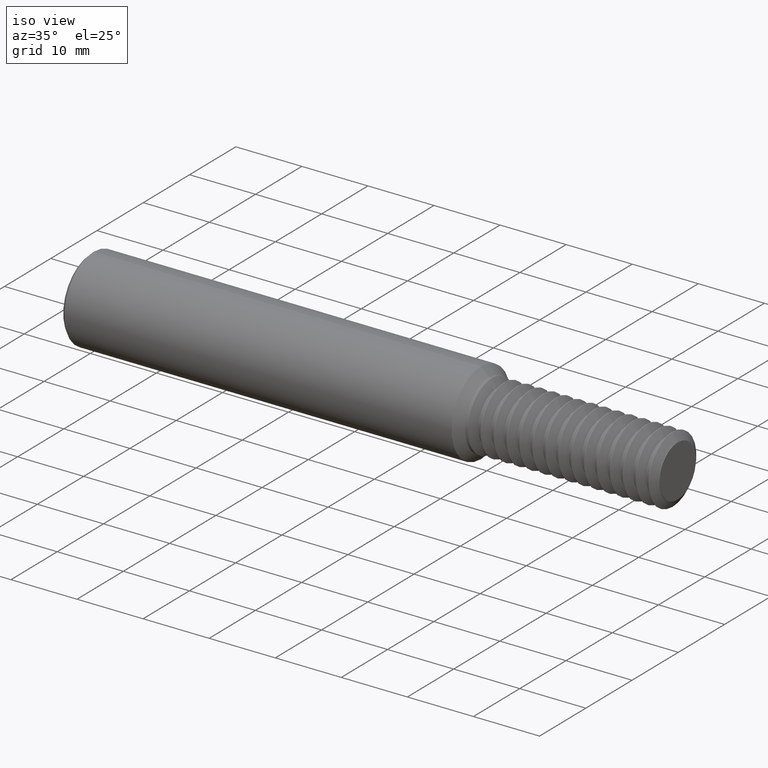
[diagram: clean part render]
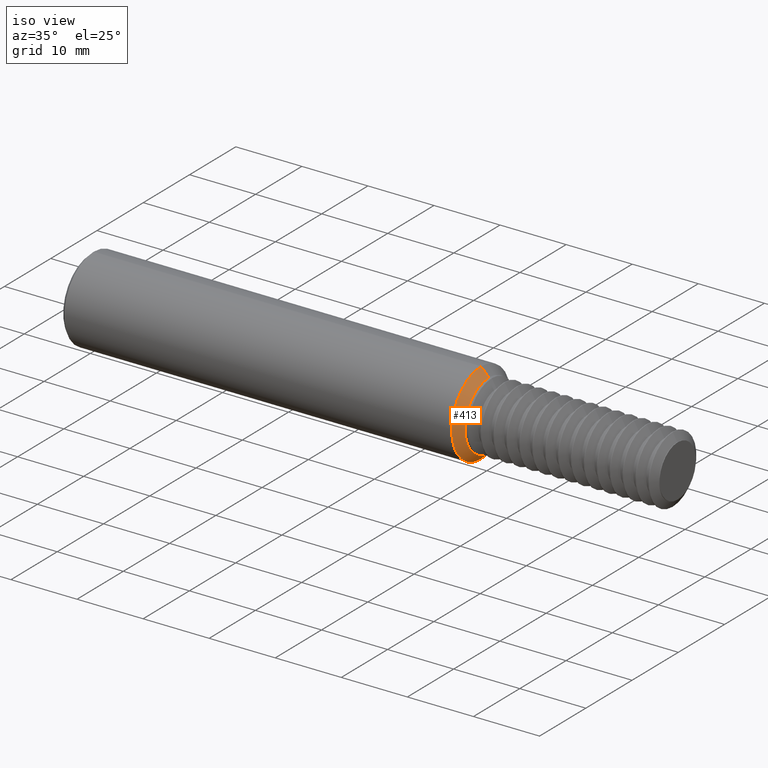
[diagram: same view with one face highlighted and labeled with its STEP entity id]
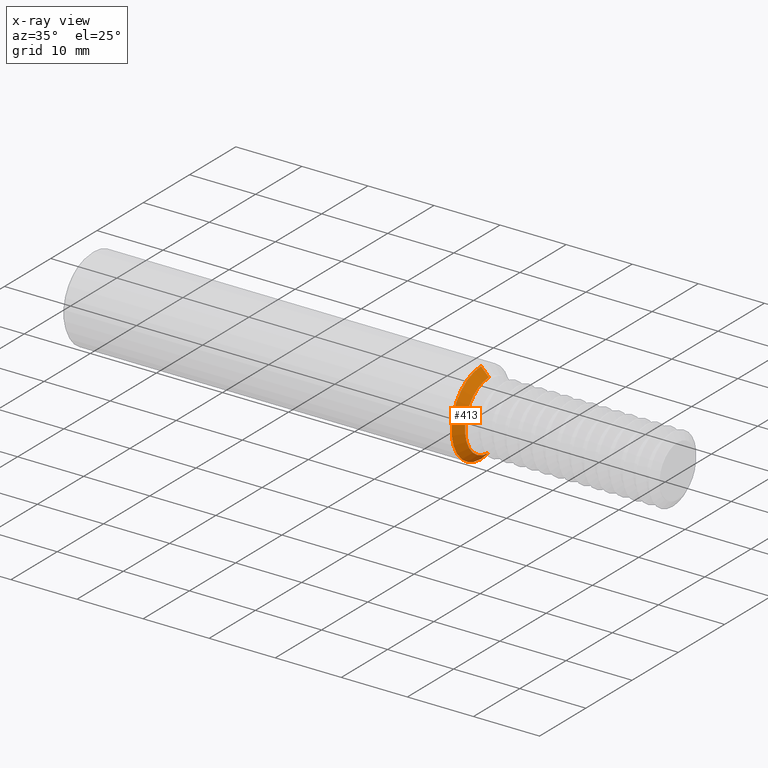
[diagram: x-ray of the same camera — body ghosted, the highlighted face saturated]
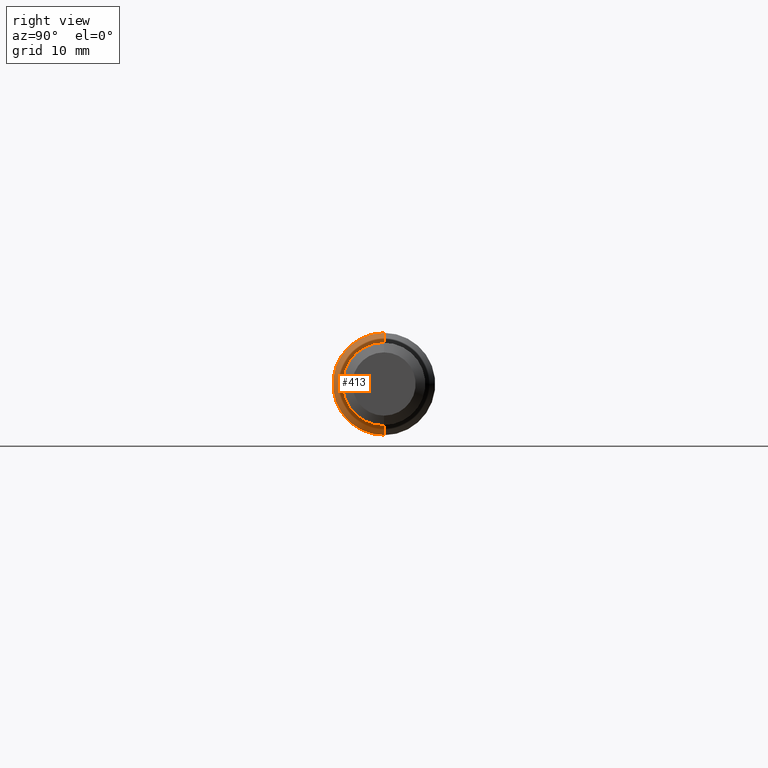
[diagram: same view with one face highlighted and labeled with its STEP entity id]
A machine part, iso view. The second image highlights one B-rep face of the part: STEP entity #413.
The next image is the same camera in x-ray: the body ghosted, the highlighted face saturated — about 0% of this face is hidden behind the body in this view.
A second angle (right view) of the same face is appended — the face is thin or edge-on in the first view.
In plain terms, the highlighted conical surface has half-angle 45 deg.
Its self-contained STEP definition (entity closure, byte-faithful):
#9 = VERTEX_POINT ( 'NONE', #1103 ) ;
#94 = DIRECTION ( 'NONE',  ( 0.000000000000000000, 0.000000000000000000, 1.000000000000000000 ) ) ;
#120 = CARTESIAN_POINT ( 'NONE',  ( 2.374999999999999556, 0.000000000000000000, 0.000000000000000000 ) ) ;
#146 = VECTOR ( 'NONE', #3137, 39.37007874015748143 ) ;
#208 = CARTESIAN_POINT ( 'NONE',  ( 2.328149999999999942, 0.000000000000000000, 0.2498499999999999888 ) ) ;
#243 = VERTEX_POINT ( 'NONE', #2754 ) ;
#401 = DIRECTION ( 'NONE',  ( 0.000000000000000000, 0.000000000000000000, 1.000000000000000000 ) ) ;
#413 = ADVANCED_FACE ( 'NONE', ( #1318 ), #1565, .T. ) ;
#585 = CARTESIAN_POINT ( 'NONE',  ( 2.374999999999999556, 2.486033002269127361E-17, -0.2030000000000000138 ) ) ;
#724 = VECTOR ( 'NONE', #2819, 39.37007874015748143 ) ;
#800 = CARTESIAN_POINT ( 'NONE',  ( 2.374999999999999556, 0.000000000000000000, 0.000000000000000000 ) ) ;
#875 = EDGE_CURVE ( 'NONE', #9, #243, #1535, .T. ) ;
#897 = LINE ( 'NONE', #2896, #146 ) ;
#929 = ORIENTED_EDGE ( 'NONE', *, *, #875, .T. ) ;
#1096 = DIRECTION ( 'NONE',  ( -1.000000000000000000, -0.000000000000000000, -0.000000000000000000 ) ) ;
#1103 = CARTESIAN_POINT ( 'NONE',  ( 2.374999999999999556, 2.772906514969394800E-17, -0.2030000000000000138 ) ) ;
#1255 = EDGE_LOOP ( 'NONE', ( #3014, #929, #3120, #1273 ) ) ;
#1273 = ORIENTED_EDGE ( 'NONE', *, *, #2791, .F. ) ;
#1318 = FACE_OUTER_BOUND ( 'NONE', #1255, .T. ) ;
#1380 = AXIS2_PLACEMENT_3D ( 'NONE', #120, #1387, #401 ) ;
#1387 = DIRECTION ( 'NONE',  ( -1.000000000000000000, -0.000000000000000000, -0.000000000000000000 ) ) ;
#1510 = AXIS2_PLACEMENT_3D ( 'NONE', #800, #3088, #94 ) ;
#1535 = CIRCLE ( 'NONE', #1380, 0.2030000000000000138 ) ;
#1565 = CONICAL_SURFACE ( 'NONE', #1510, 0.2030000000000000138, 0.7853981633974501664 ) ;
#1584 = DIRECTION ( 'NONE',  ( 0.000000000000000000, 0.000000000000000000, 1.000000000000000000 ) ) ;
#1611 = CARTESIAN_POINT ( 'NONE',  ( 2.328149999999999942, 0.000000000000000000, 0.000000000000000000 ) ) ;
#1814 = LINE ( 'NONE', #585, #724 ) ;
#2206 = VERTEX_POINT ( 'NONE', #208 ) ;
#2341 = CIRCLE ( 'NONE', #3167, 0.2498499999999999888 ) ;
#2754 = CARTESIAN_POINT ( 'NONE',  ( 2.374999999999999556, 0.000000000000000000, 0.2030000000000000138 ) ) ;
#2764 = VERTEX_POINT ( 'NONE', #2783 ) ;
#2783 = CARTESIAN_POINT ( 'NONE',  ( 2.328149999999999942, 3.059780027669661931E-17, -0.2498499999999999888 ) ) ;
#2791 = EDGE_CURVE ( 'NONE', #2764, #2206, #2341, .T. ) ;
#2810 = EDGE_CURVE ( 'NONE', #9, #2764, #1814, .T. ) ;
#2819 = DIRECTION ( 'NONE',  ( -0.7071067811865462405, 8.659560562354948882E-17, -0.7071067811865487940 ) ) ;
#2896 = CARTESIAN_POINT ( 'NONE',  ( 2.374999999999999556, 0.000000000000000000, 0.2030000000000000138 ) ) ;
#2928 = EDGE_CURVE ( 'NONE', #243, #2206, #897, .T. ) ;
#3014 = ORIENTED_EDGE ( 'NONE', *, *, #2810, .F. ) ;
#3088 = DIRECTION ( 'NONE',  ( -1.000000000000000000, -0.000000000000000000, -0.000000000000000000 ) ) ;
#3120 = ORIENTED_EDGE ( 'NONE', *, *, #2928, .T. ) ;
#3137 = DIRECTION ( 'NONE',  ( -0.7071067811865462405, 0.000000000000000000, 0.7071067811865487940 ) ) ;
#3167 = AXIS2_PLACEMENT_3D ( 'NONE', #1611, #1096, #1584 ) ;